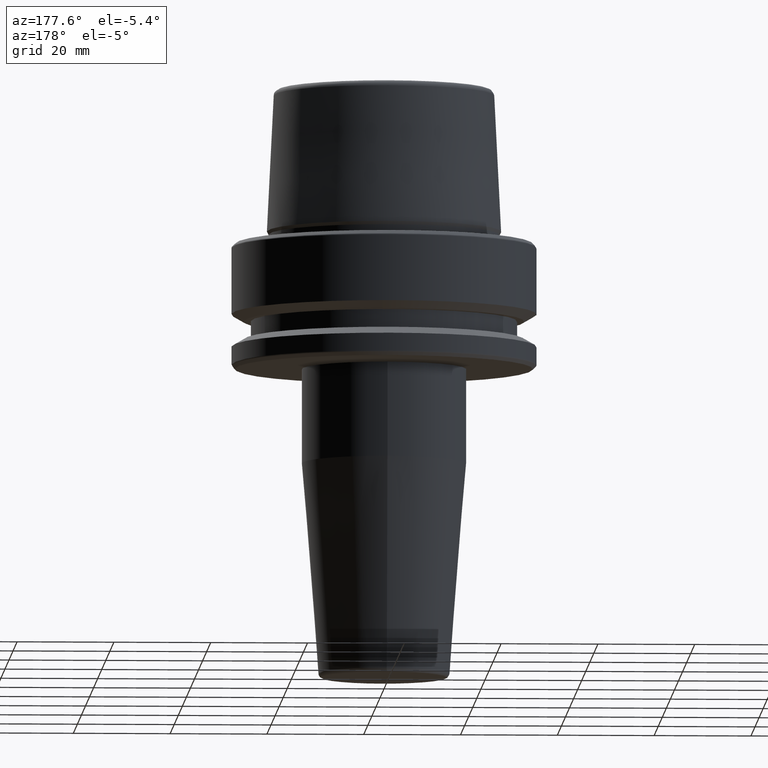
[diagram: clean part render]
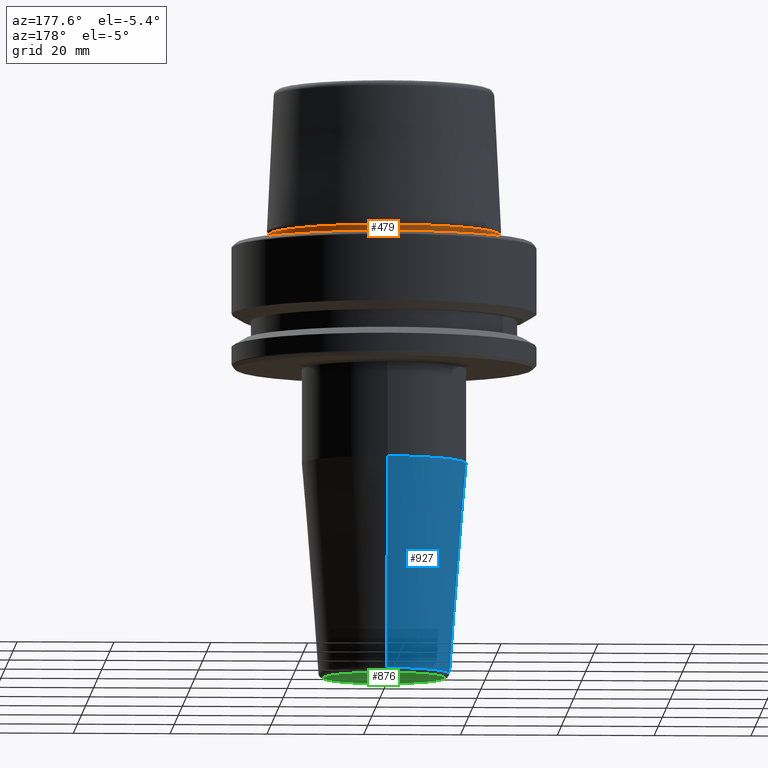
[diagram: same view with three faces highlighted in distinct colors, each labeled with its STEP entity id]
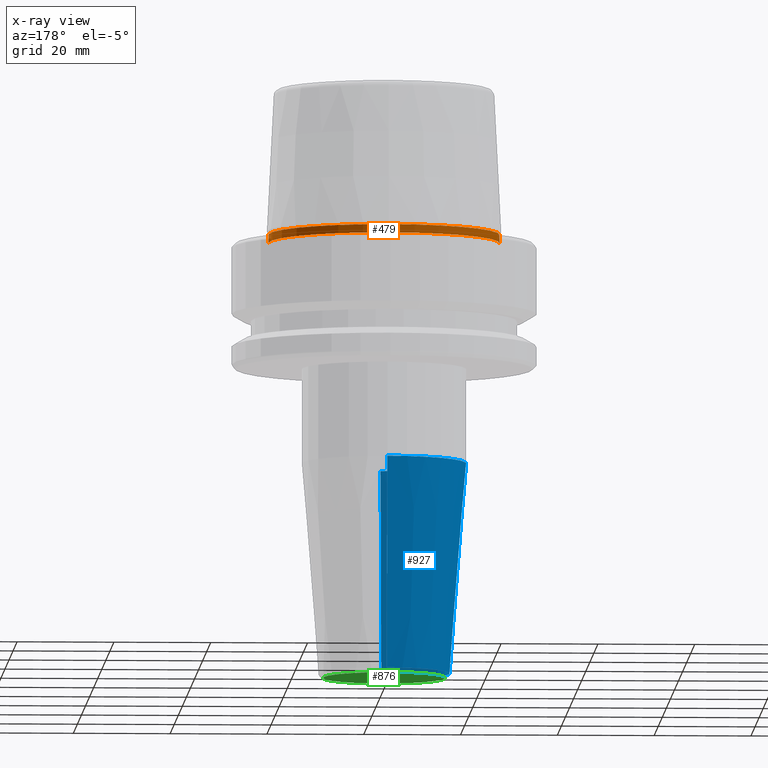
[diagram: x-ray of the same camera — body ghosted, the three highlighted faces saturated]
A machine part, auxiliary view with three faces highlighted in distinct colors.
The next image is the same camera in x-ray (body ghosted, the three faces saturated) — at least one of them is partly hidden behind the body in this view.
Their STEP definitions:

[orange] entity #479 — the highlighted cylindrical surface (partial cylindrical patch) has radius 23.89 mm, axis along (-0, -0, 1).
#50 = CIRCLE ( 'NONE', #910, 23.89000000000000100 ) ;
#51 = AXIS2_PLACEMENT_3D ( 'NONE', #967, #298, #538 ) ;
#59 = EDGE_CURVE ( 'NONE', #206, #629, #1088, .T. ) ;
#188 = CIRCLE ( 'NONE', #594, 23.89000000000000400 ) ;
#206 = VERTEX_POINT ( 'NONE', #873 ) ;
#233 = CARTESIAN_POINT ( 'NONE',  ( 23.89000000000000100, 0.0000000000000000000, 78.96908074195309300 ) ) ;
#243 = EDGE_CURVE ( 'NONE', #480, #988, #289, .T. ) ;
#253 = VECTOR ( 'NONE', #1078, 1000.000000000000000 ) ;
#261 = FACE_OUTER_BOUND ( 'NONE', #750, .T. ) ;
#275 = CARTESIAN_POINT ( 'NONE',  ( 23.89000000000000100, 0.0000000000000000000, 1.845119734979375100 ) ) ;
#289 = LINE ( 'NONE', #498, #253 ) ;
#298 = DIRECTION ( 'NONE',  ( -0.0000000000000000000, -0.0000000000000000000, 1.000000000000000000 ) ) ;
#464 = ORIENTED_EDGE ( 'NONE', *, *, #243, .T. ) ;
#479 = ADVANCED_FACE ( 'NONE', ( #261 ), #989, .T. ) ;
#480 = VERTEX_POINT ( 'NONE', #624 ) ;
#498 = CARTESIAN_POINT ( 'NONE',  ( -23.89000000000000100, 2.925681203163027000E-015, 78.96908074195309300 ) ) ;
#538 = DIRECTION ( 'NONE',  ( 1.000000000000000000, 0.0000000000000000000, 0.0000000000000000000 ) ) ;
#594 = AXIS2_PLACEMENT_3D ( 'NONE', #1043, #1064, #681 ) ;
#620 = DIRECTION ( 'NONE',  ( 1.000000000000000000, 0.0000000000000000000, 0.0000000000000000000 ) ) ;
#624 = CARTESIAN_POINT ( 'NONE',  ( -23.89000000000000400, 2.961613815265650600E-015, 0.1312552021302954000 ) ) ;
#629 = VERTEX_POINT ( 'NONE', #275 ) ;
#630 = DIRECTION ( 'NONE',  ( -0.0000000000000000000, -0.0000000000000000000, 1.000000000000000000 ) ) ;
#681 = DIRECTION ( 'NONE',  ( 1.000000000000000000, 0.0000000000000000000, 0.0000000000000000000 ) ) ;
#691 = EDGE_CURVE ( 'NONE', #629, #988, #50, .T. ) ;
#750 = EDGE_LOOP ( 'NONE', ( #969, #464, #896, #1048 ) ) ;
#833 = VECTOR ( 'NONE', #630, 1000.000000000000000 ) ;
#855 = CARTESIAN_POINT ( 'NONE',  ( -23.89000000000000100, 2.944380070784114200E-015, 1.845119734979375100 ) ) ;
#873 = CARTESIAN_POINT ( 'NONE',  ( 23.89000000000000400, 0.0000000000000000000, 0.1312552021302954000 ) ) ;
#896 = ORIENTED_EDGE ( 'NONE', *, *, #691, .F. ) ;
#910 = AXIS2_PLACEMENT_3D ( 'NONE', #1107, #1066, #620 ) ;
#967 = CARTESIAN_POINT ( 'NONE',  ( 0.0000000000000000000, 0.0000000000000000000, 78.96908074195309300 ) ) ;
#969 = ORIENTED_EDGE ( 'NONE', *, *, #1013, .T. ) ;
#988 = VERTEX_POINT ( 'NONE', #855 ) ;
#989 = CYLINDRICAL_SURFACE ( 'NONE', #51, 23.89000000000000100 ) ;
#1013 = EDGE_CURVE ( 'NONE', #206, #480, #188, .T. ) ;
#1043 = CARTESIAN_POINT ( 'NONE',  ( 0.0000000000000000000, 0.0000000000000000000, 0.1312552021302954000 ) ) ;
#1048 = ORIENTED_EDGE ( 'NONE', *, *, #59, .F. ) ;
#1064 = DIRECTION ( 'NONE',  ( -0.0000000000000000000, -0.0000000000000000000, 1.000000000000000000 ) ) ;
#1066 = DIRECTION ( 'NONE',  ( -0.0000000000000000000, -0.0000000000000000000, 1.000000000000000000 ) ) ;
#1078 = DIRECTION ( 'NONE',  ( -0.0000000000000000000, -0.0000000000000000000, 1.000000000000000000 ) ) ;
#1088 = LINE ( 'NONE', #233, #833 ) ;
#1107 = CARTESIAN_POINT ( 'NONE',  ( 0.0000000000000000000, 0.0000000000000000000, 1.845119734979375100 ) ) ;

[blue] entity #927 — the highlighted conical surface has half-angle 4.5 deg.
#11 = AXIS2_PLACEMENT_3D ( 'NONE', #738, #908, #935 ) ;
#29 = CARTESIAN_POINT ( 'NONE',  ( 0.0000000000000000000, 3.736757779264072900E-016, -45.52828342338445100 ) ) ;
#77 = DIRECTION ( 'NONE',  ( -0.0000000000000000000, 1.913510623667739200E-017, -1.000000000000000000 ) ) ;
#102 = CIRCLE ( 'NONE', #529, 13.57252684207491300 ) ;
#137 = VECTOR ( 'NONE', #941, 1000.000000000000000 ) ;
#197 = VERTEX_POINT ( 'NONE', #1256 ) ;
#208 = LINE ( 'NONE', #1084, #926 ) ;
#245 = CARTESIAN_POINT ( 'NONE',  ( 2.081899558550499900E-015, 16.99999999999999300, -45.52828342338445100 ) ) ;
#300 = ORIENTED_EDGE ( 'NONE', *, *, #540, .T. ) ;
#306 = AXIS2_PLACEMENT_3D ( 'NONE', #29, #619, #423 ) ;
#370 = LINE ( 'NONE', #867, #137 ) ;
#385 = EDGE_CURVE ( 'NONE', #197, #390, #102, .T. ) ;
#390 = VERTEX_POINT ( 'NONE', #692 ) ;
#423 = DIRECTION ( 'NONE',  ( 0.0000000000000000000, 1.000000000000000000, 0.0000000000000000000 ) ) ;
#491 = ORIENTED_EDGE ( 'NONE', *, *, #385, .F. ) ;
#528 = EDGE_CURVE ( 'NONE', #390, #1213, #208, .T. ) ;
#529 = AXIS2_PLACEMENT_3D ( 'NONE', #1062, #77, #878 ) ;
#540 = EDGE_CURVE ( 'NONE', #1018, #1213, #1181, .T. ) ;
#619 = DIRECTION ( 'NONE',  ( -0.0000000000000000000, 1.913510623667739200E-017, -1.000000000000000000 ) ) ;
#692 = CARTESIAN_POINT ( 'NONE',  ( 0.0000000000000000000, 13.57252684207491600, -89.07845909572782300 ) ) ;
#738 = CARTESIAN_POINT ( 'NONE',  ( 0.0000000000000000000, 3.736757779264072900E-016, -45.52828342338445100 ) ) ;
#798 = ORIENTED_EDGE ( 'NONE', *, *, #528, .F. ) ;
#808 = EDGE_CURVE ( 'NONE', #197, #1018, #370, .T. ) ;
#867 = CARTESIAN_POINT ( 'NONE',  ( 0.0000000000000000000, -16.99999999999999300, -45.52828342338445100 ) ) ;
#878 = DIRECTION ( 'NONE',  ( 0.0000000000000000000, 1.000000000000000000, 0.0000000000000000000 ) ) ;
#883 = EDGE_LOOP ( 'NONE', ( #798, #491, #982, #300 ) ) ;
#908 = DIRECTION ( 'NONE',  ( 0.0000000000000000000, -1.913510623667739200E-017, 1.000000000000000000 ) ) ;
#926 = VECTOR ( 'NONE', #1184, 1000.000000000000000 ) ;
#927 = ADVANCED_FACE ( 'NONE', ( #1224 ), #1012, .T. ) ;
#935 = DIRECTION ( 'NONE',  ( 0.0000000000000000000, -1.000000000000000000, 0.0000000000000000000 ) ) ;
#941 = DIRECTION ( 'NONE',  ( 0.0000000000000000000, -0.07845909572783769900, 0.9969173337331285200 ) ) ;
#982 = ORIENTED_EDGE ( 'NONE', *, *, #808, .T. ) ;
#1012 = CONICAL_SURFACE ( 'NONE', #11, 16.99999999999999300, 0.07853981633973757000 ) ;
#1018 = VERTEX_POINT ( 'NONE', #1155 ) ;
#1062 = CARTESIAN_POINT ( 'NONE',  ( 0.0000000000000000000, 1.207013016042661200E-015, -89.07845909572782300 ) ) ;
#1084 = CARTESIAN_POINT ( 'NONE',  ( 2.081899558550499900E-015, 16.99999999999999300, -45.52828342338445100 ) ) ;
#1155 = CARTESIAN_POINT ( 'NONE',  ( 0.0000000000000000000, -16.99999999999999300, -45.52828342338445100 ) ) ;
#1181 = CIRCLE ( 'NONE', #306, 16.99999999999999300 ) ;
#1184 = DIRECTION ( 'NONE',  ( 9.608468044709221400E-018, 0.07845909572783768500, 0.9969173337331285200 ) ) ;
#1213 = VERTEX_POINT ( 'NONE', #245 ) ;
#1224 = FACE_OUTER_BOUND ( 'NONE', #883, .T. ) ;
#1256 = CARTESIAN_POINT ( 'NONE',  ( 1.662155155348857600E-015, -13.57252684207491300, -89.07845909572782300 ) ) ;

[green] entity #876 — the highlighted planar face has unit normal (0, -0, 1).
#1 = CARTESIAN_POINT ( 'NONE',  ( 0.0000000000000000000, 12.57560950834178800, -90.00000000000000000 ) ) ;
#116 = PLANE ( 'NONE',  #951 ) ;
#117 = CARTESIAN_POINT ( 'NONE',  ( 0.0000000000000000000, 1.224646799147352900E-015, -90.00000000000000000 ) ) ;
#129 = CIRCLE ( 'NONE', #331, 12.57560950834178600 ) ;
#178 = CARTESIAN_POINT ( 'NONE',  ( 0.0000000000000000000, 1.224646799147352900E-015, -90.00000000000000000 ) ) ;
#214 = DIRECTION ( 'NONE',  ( 0.0000000000000000000, -1.000000000000000000, -1.913510623667739200E-017 ) ) ;
#222 = CARTESIAN_POINT ( 'NONE',  ( 1.601111574260318500E-015, -12.57560950834178500, -90.00000000000000000 ) ) ;
#258 = AXIS2_PLACEMENT_3D ( 'NONE', #178, #862, #1250 ) ;
#331 = AXIS2_PLACEMENT_3D ( 'NONE', #117, #1189, #994 ) ;
#358 = EDGE_CURVE ( 'NONE', #656, #365, #129, .T. ) ;
#365 = VERTEX_POINT ( 'NONE', #222 ) ;
#442 = ORIENTED_EDGE ( 'NONE', *, *, #964, .T. ) ;
#564 = EDGE_LOOP ( 'NONE', ( #611, #442 ) ) ;
#591 = DIRECTION ( 'NONE',  ( 0.0000000000000000000, -1.913510623667739200E-017, 1.000000000000000000 ) ) ;
#611 = ORIENTED_EDGE ( 'NONE', *, *, #358, .T. ) ;
#656 = VERTEX_POINT ( 'NONE', #1 ) ;
#709 = CARTESIAN_POINT ( 'NONE',  ( 0.0000000000000000000, 2.302294114144417600E-033, -90.00000000000000000 ) ) ;
#772 = FACE_OUTER_BOUND ( 'NONE', #564, .T. ) ;
#862 = DIRECTION ( 'NONE',  ( -0.0000000000000000000, 1.913510623667739200E-017, -1.000000000000000000 ) ) ;
#876 = ADVANCED_FACE ( 'NONE', ( #772 ), #116, .F. ) ;
#951 = AXIS2_PLACEMENT_3D ( 'NONE', #709, #591, #214 ) ;
#964 = EDGE_CURVE ( 'NONE', #365, #656, #1253, .T. ) ;
#994 = DIRECTION ( 'NONE',  ( 0.0000000000000000000, 1.000000000000000000, 0.0000000000000000000 ) ) ;
#1189 = DIRECTION ( 'NONE',  ( -0.0000000000000000000, 1.913510623667739200E-017, -1.000000000000000000 ) ) ;
#1250 = DIRECTION ( 'NONE',  ( 0.0000000000000000000, 1.000000000000000000, 0.0000000000000000000 ) ) ;
#1253 = CIRCLE ( 'NONE', #258, 12.57560950834178600 ) ;